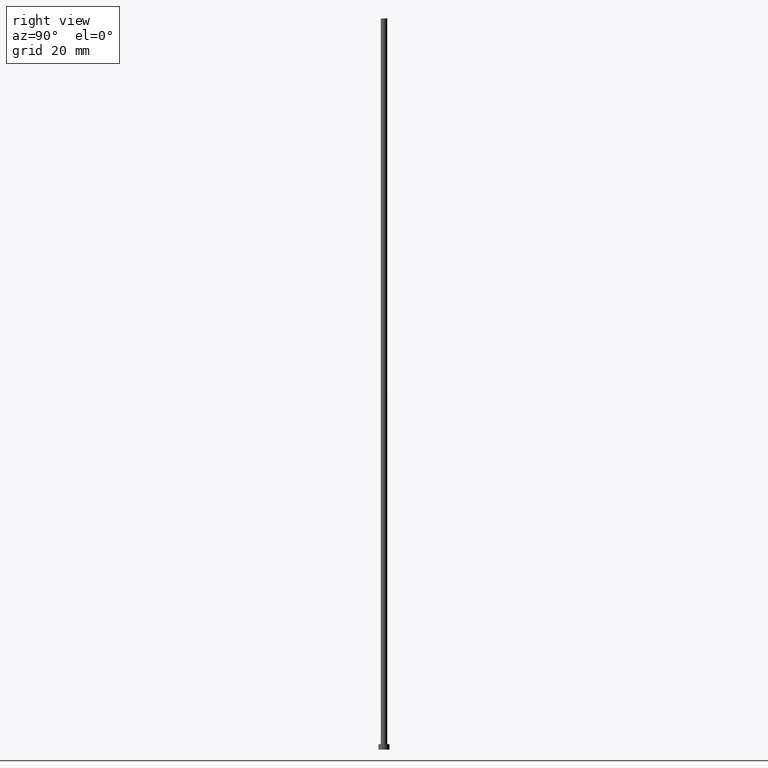
[diagram: clean part render]
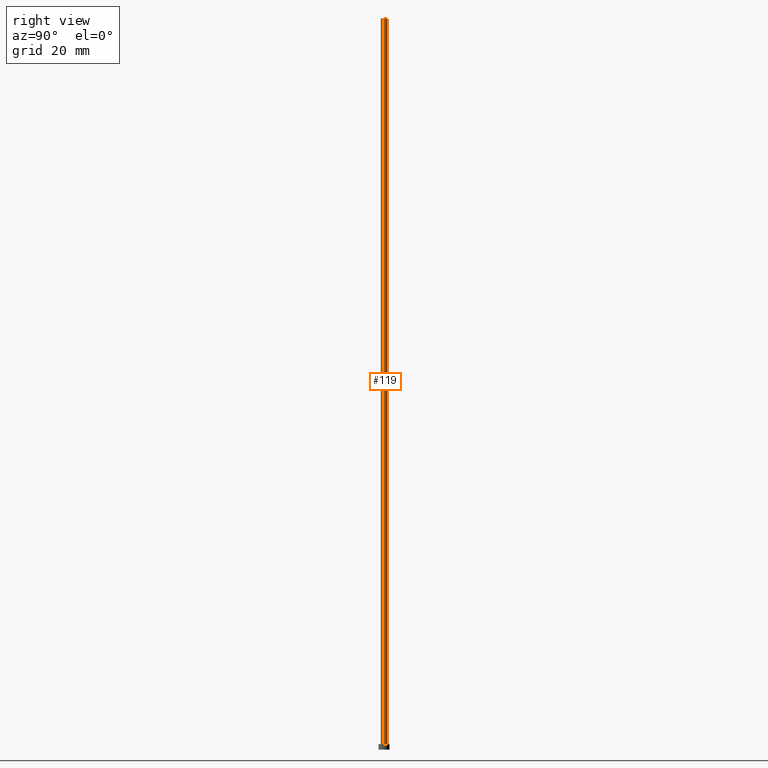
[diagram: same view with one face highlighted and labeled with its STEP entity id]
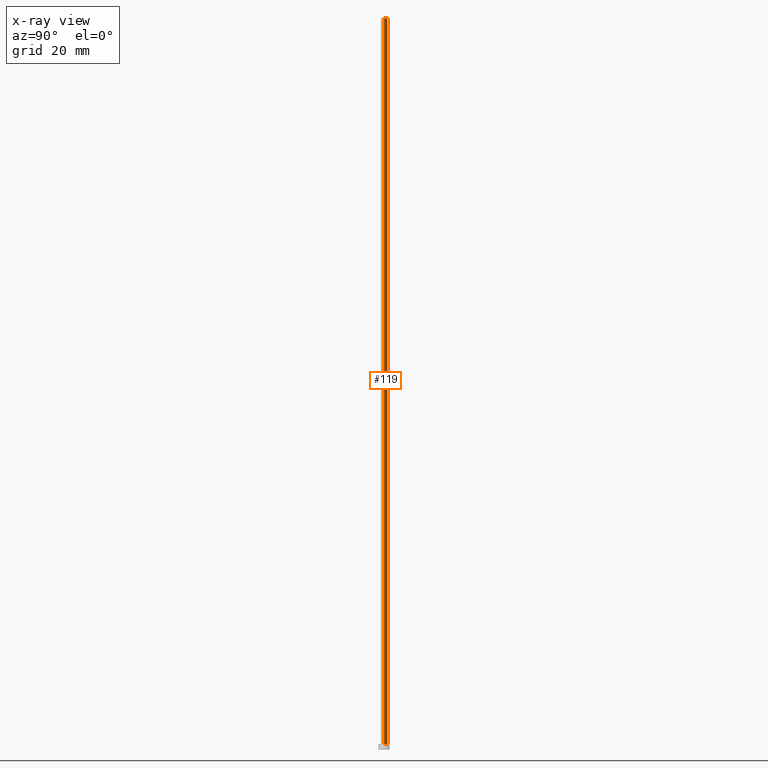
[diagram: x-ray of the same camera — body ghosted, the highlighted face saturated]
A machine part, right view. The second image highlights one B-rep face of the part: STEP entity #119.
The next image is the same camera in x-ray: the body ghosted, the highlighted face saturated — about 0% of this face is hidden behind the body in this view.
In plain terms, the highlighted cylindrical surface (edge-blend (fillet) strip) has radius 0.9 mm, axis along (-0, -0, -1).
Its self-contained STEP definition (entity closure, byte-faithful):
#6 = EDGE_CURVE ( 'NONE', #22, #167, #35, .T. ) ;
#7 = ORIENTED_EDGE ( 'NONE', *, *, #244, .F. ) ;
#8 = DIRECTION ( 'NONE',  ( 0.000000000000000000, 0.000000000000000000, 1.000000000000000000 ) ) ;
#10 = CARTESIAN_POINT ( 'NONE',  ( -0.9000000000000000222, 0.000000000000000000, 1.500000000000000000 ) ) ;
#18 = LINE ( 'NONE', #173, #107 ) ;
#19 = LINE ( 'NONE', #200, #21 ) ;
#21 = VECTOR ( 'NONE', #46, 1000.000000000000000 ) ;
#22 = VERTEX_POINT ( 'NONE', #45 ) ;
#35 = CIRCLE ( 'NONE', #89, 0.9000000000000000222 ) ;
#36 = DIRECTION ( 'NONE',  ( -0.000000000000000000, -0.000000000000000000, -1.000000000000000000 ) ) ;
#41 = ORIENTED_EDGE ( 'NONE', *, *, #161, .F. ) ;
#45 = CARTESIAN_POINT ( 'NONE',  ( 0.9000000000000000222, 1.102182119232617788E-16, 1.500000000000000000 ) ) ;
#46 = DIRECTION ( 'NONE',  ( -0.000000000000000000, -0.000000000000000000, -1.000000000000000000 ) ) ;
#56 = CIRCLE ( 'NONE', #85, 0.9000000000000000222 ) ;
#85 = AXIS2_PLACEMENT_3D ( 'NONE', #169, #108, #186 ) ;
#89 = AXIS2_PLACEMENT_3D ( 'NONE', #184, #8, #223 ) ;
#101 = EDGE_LOOP ( 'NONE', ( #41, #241, #217, #7 ) ) ;
#107 = VECTOR ( 'NONE', #231, 1000.000000000000000 ) ;
#108 = DIRECTION ( 'NONE',  ( 0.000000000000000000, 0.000000000000000000, 1.000000000000000000 ) ) ;
#118 = CARTESIAN_POINT ( 'NONE',  ( -0.9000000000000000222, 0.000000000000000000, 200.0000000000000000 ) ) ;
#119 = ADVANCED_FACE ( 'NONE', ( #199 ), #214, .T. ) ;
#120 = VERTEX_POINT ( 'NONE', #118 ) ;
#122 = AXIS2_PLACEMENT_3D ( 'NONE', #255, #36, #158 ) ;
#124 = EDGE_CURVE ( 'NONE', #143, #22, #19, .T. ) ;
#132 = CARTESIAN_POINT ( 'NONE',  ( 0.9000000000000000222, 1.102182119232617788E-16, 200.0000000000000000 ) ) ;
#143 = VERTEX_POINT ( 'NONE', #132 ) ;
#158 = DIRECTION ( 'NONE',  ( -1.000000000000000000, 0.000000000000000000, 0.000000000000000000 ) ) ;
#161 = EDGE_CURVE ( 'NONE', #143, #120, #56, .T. ) ;
#167 = VERTEX_POINT ( 'NONE', #10 ) ;
#169 = CARTESIAN_POINT ( 'NONE',  ( 0.000000000000000000, 0.000000000000000000, 200.0000000000000000 ) ) ;
#173 = CARTESIAN_POINT ( 'NONE',  ( -0.9000000000000000222, 0.000000000000000000, 200.0000000000000000 ) ) ;
#184 = CARTESIAN_POINT ( 'NONE',  ( 0.000000000000000000, 0.000000000000000000, 1.500000000000000000 ) ) ;
#186 = DIRECTION ( 'NONE',  ( 1.000000000000000000, 0.000000000000000000, 0.000000000000000000 ) ) ;
#199 = FACE_OUTER_BOUND ( 'NONE', #101, .T. ) ;
#200 = CARTESIAN_POINT ( 'NONE',  ( 0.9000000000000000222, 1.102182119232617788E-16, 200.0000000000000000 ) ) ;
#214 = CYLINDRICAL_SURFACE ( 'NONE', #122, 0.9000000000000000222 ) ;
#217 = ORIENTED_EDGE ( 'NONE', *, *, #6, .T. ) ;
#223 = DIRECTION ( 'NONE',  ( 1.000000000000000000, 0.000000000000000000, 0.000000000000000000 ) ) ;
#231 = DIRECTION ( 'NONE',  ( -0.000000000000000000, -0.000000000000000000, -1.000000000000000000 ) ) ;
#241 = ORIENTED_EDGE ( 'NONE', *, *, #124, .T. ) ;
#244 = EDGE_CURVE ( 'NONE', #120, #167, #18, .T. ) ;
#255 = CARTESIAN_POINT ( 'NONE',  ( 0.000000000000000000, 0.000000000000000000, 200.0000000000000000 ) ) ;